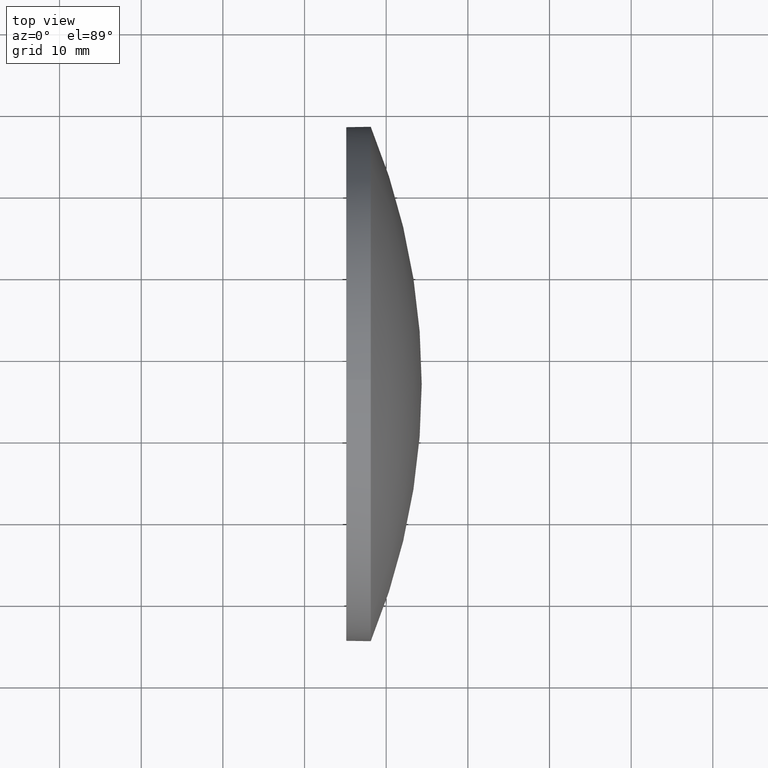
[diagram: clean part render]
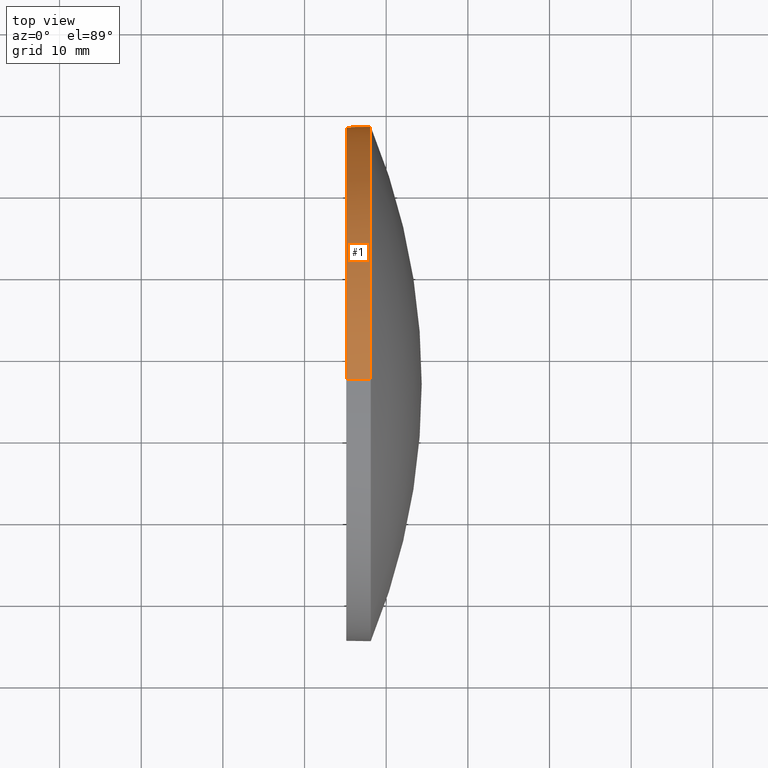
[diagram: same view with one face highlighted and labeled with its STEP entity id]
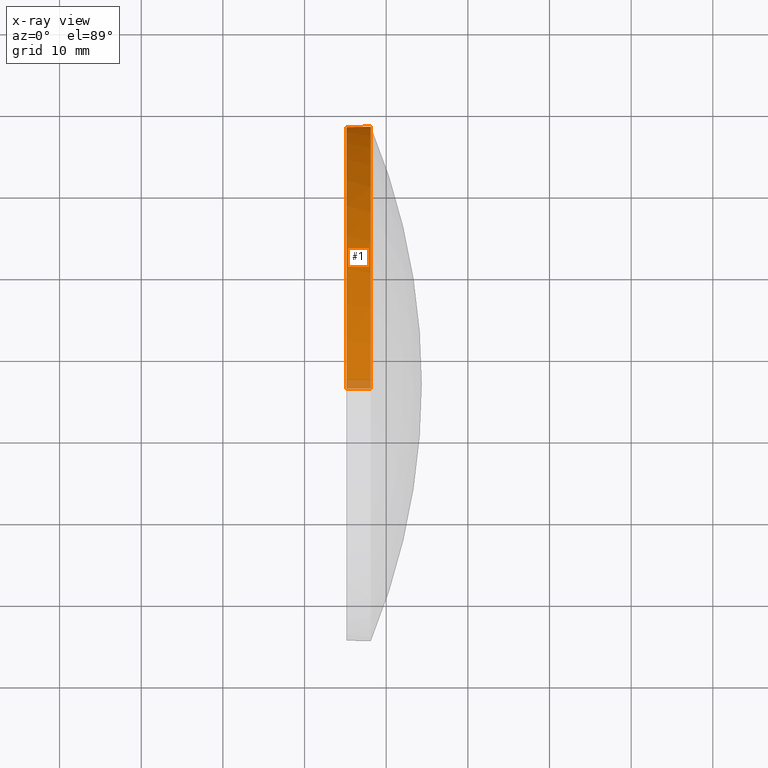
[diagram: x-ray of the same camera — body ghosted, the highlighted face saturated]
A machine part, top view. The second image highlights one B-rep face of the part: STEP entity #1.
The next image is the same camera in x-ray: the body ghosted, the highlighted face saturated — about 3% of this face is hidden behind the body in this view.
In plain terms, the highlighted cylindrical surface (partial cylindrical patch) has radius 31.5 mm, axis along (-1, -0, -0).
Its self-contained STEP definition (entity closure, byte-faithful):
#1 = ADVANCED_FACE ( 'NONE', ( #64 ), #46, .T. ) ;
#2 = CARTESIAN_POINT ( 'NONE',  ( 386.0720623555101800, 96.66232867724565400, -31.50000000000001400 ) ) ;
#4 = CIRCLE ( 'NONE', #106, 31.50000000000001400 ) ;
#7 = DIRECTION ( 'NONE',  ( -1.000000000000000000, -0.0000000000000000000, -0.0000000000000000000 ) ) ;
#8 = DIRECTION ( 'NONE',  ( -1.000000000000000000, -0.0000000000000000000, -0.0000000000000000000 ) ) ;
#10 = DIRECTION ( 'NONE',  ( 0.0000000000000000000, 0.0000000000000000000, 1.000000000000000000 ) ) ;
#17 = CARTESIAN_POINT ( 'NONE',  ( 405.1110174173326200, 96.66232867724565400, 31.50000000000001400 ) ) ;
#18 = DIRECTION ( 'NONE',  ( 0.0000000000000000000, 0.0000000000000000000, 1.000000000000000000 ) ) ;
#21 = DIRECTION ( 'NONE',  ( 0.0000000000000000000, 0.0000000000000000000, 1.000000000000000000 ) ) ;
#24 = DIRECTION ( 'NONE',  ( -1.000000000000000000, -0.0000000000000000000, -0.0000000000000000000 ) ) ;
#25 = AXIS2_PLACEMENT_3D ( 'NONE', #36, #24, #10 ) ;
#29 = EDGE_CURVE ( 'NONE', #60, #70, #86, .T. ) ;
#30 = EDGE_LOOP ( 'NONE', ( #33, #126, #135, #94, #144 ) ) ;
#33 = ORIENTED_EDGE ( 'NONE', *, *, #45, .T. ) ;
#34 = VECTOR ( 'NONE', #165, 1000.000000000000000 ) ;
#36 = CARTESIAN_POINT ( 'NONE',  ( 408.1110174173326200, 96.66232867724565400, 0.0000000000000000000 ) ) ;
#45 = EDGE_CURVE ( 'NONE', #87, #60, #95, .T. ) ;
#46 = CYLINDRICAL_SURFACE ( 'NONE', #85, 31.50000000000001400 ) ;
#51 = VERTEX_POINT ( 'NONE', #17 ) ;
#60 = VERTEX_POINT ( 'NONE', #77 ) ;
#64 = FACE_OUTER_BOUND ( 'NONE', #30, .T. ) ;
#70 = VERTEX_POINT ( 'NONE', #151 ) ;
#77 = CARTESIAN_POINT ( 'NONE',  ( 408.1110174173326200, 96.66232867724565400, -31.50000000000001400 ) ) ;
#79 = LINE ( 'NONE', #177, #34 ) ;
#85 = AXIS2_PLACEMENT_3D ( 'NONE', #93, #172, #18 ) ;
#86 = LINE ( 'NONE', #2, #184 ) ;
#87 = VERTEX_POINT ( 'NONE', #141 ) ;
#91 = CIRCLE ( 'NONE', #25, 31.50000000000001400 ) ;
#93 = CARTESIAN_POINT ( 'NONE',  ( 386.0720623555101800, 96.66232867724565400, 0.0000000000000000000 ) ) ;
#94 = ORIENTED_EDGE ( 'NONE', *, *, #123, .F. ) ;
#95 = CIRCLE ( 'NONE', #138, 31.50000000000001400 ) ;
#97 = CARTESIAN_POINT ( 'NONE',  ( 405.1110174173326200, 96.66232867724565400, 0.0000000000000000000 ) ) ;
#106 = AXIS2_PLACEMENT_3D ( 'NONE', #97, #8, #163 ) ;
#111 = DIRECTION ( 'NONE',  ( -1.000000000000000000, -0.0000000000000000000, -0.0000000000000000000 ) ) ;
#123 = EDGE_CURVE ( 'NONE', #124, #51, #79, .T. ) ;
#124 = VERTEX_POINT ( 'NONE', #128 ) ;
#126 = ORIENTED_EDGE ( 'NONE', *, *, #29, .T. ) ;
#128 = CARTESIAN_POINT ( 'NONE',  ( 408.1110174173326200, 96.66232867724565400, 31.50000000000001400 ) ) ;
#135 = ORIENTED_EDGE ( 'NONE', *, *, #156, .F. ) ;
#138 = AXIS2_PLACEMENT_3D ( 'NONE', #174, #111, #21 ) ;
#141 = CARTESIAN_POINT ( 'NONE',  ( 408.1110174173326200, 128.1623286772456500, 0.0000000000000000000 ) ) ;
#144 = ORIENTED_EDGE ( 'NONE', *, *, #145, .T. ) ;
#145 = EDGE_CURVE ( 'NONE', #124, #87, #91, .T. ) ;
#151 = CARTESIAN_POINT ( 'NONE',  ( 405.1110174173326200, 96.66232867724565400, -31.50000000000001400 ) ) ;
#156 = EDGE_CURVE ( 'NONE', #51, #70, #4, .T. ) ;
#163 = DIRECTION ( 'NONE',  ( 0.0000000000000000000, 0.0000000000000000000, 1.000000000000000000 ) ) ;
#165 = DIRECTION ( 'NONE',  ( -1.000000000000000000, -0.0000000000000000000, -0.0000000000000000000 ) ) ;
#172 = DIRECTION ( 'NONE',  ( -1.000000000000000000, -0.0000000000000000000, -0.0000000000000000000 ) ) ;
#174 = CARTESIAN_POINT ( 'NONE',  ( 408.1110174173326200, 96.66232867724565400, 0.0000000000000000000 ) ) ;
#177 = CARTESIAN_POINT ( 'NONE',  ( 386.0720623555101800, 96.66232867724565400, 31.50000000000001400 ) ) ;
#184 = VECTOR ( 'NONE', #7, 1000.000000000000000 ) ;